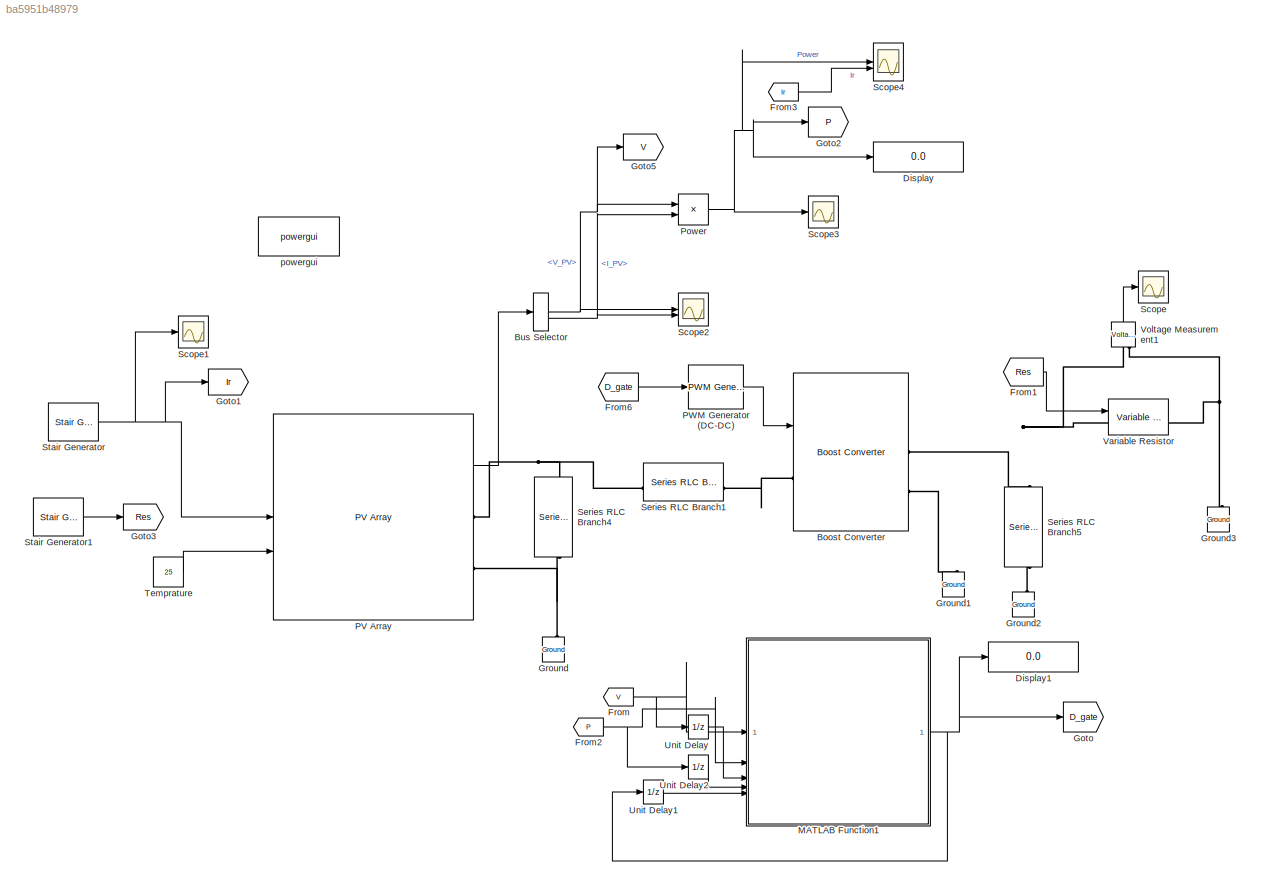
MODEL slx_ba5951b48979
KIND model
CONFIG AbsTol = auto
CONFIG EnableMultiTasking = off
CONFIG FixedStep = 5e-6
CONFIG MaxStep = auto
CONFIG MinStep = auto
CONFIG RelTol = 1e-3
CONFIG SampleTimeConstraint = Unconstrained
CONFIG SolverName = FixedStepAuto
CONFIG StartTime = 0.0
CONFIG StopTime = 10.0
BLOCK [Reference] Boost Converter  REF=spsBoostConverterLib/Boost Converter
  LibrarySourceBlock = sps_lib/Power Electronics/Boost Converter
  SourceBlock = spsBoostConverterLib/Boost Converter
  SourceType = Boost Converter
BLOCK [BusSelector] Bus Selector
  OutputSignals = V_PV,I_PV
BLOCK [Display] Display
  Decimation = 1
BLOCK [Display] Display1
  Decimation = 1
BLOCK [From] From
  GotoTag = V
BLOCK [From] From1
  GotoTag = Res
BLOCK [From] From2
  GotoTag = P
  TagVisibility = global
BLOCK [From] From3
  GotoTag = Ir
BLOCK [From] From6
  GotoTag = D_gate
BLOCK [Goto] Goto
  GotoTag = D_gate
BLOCK [Goto] Goto1
  GotoTag = Ir
BLOCK [Goto] Goto2
  GotoTag = P
  TagVisibility = global
BLOCK [Goto] Goto3
  GotoTag = Res
BLOCK [Goto] Goto5
  GotoTag = V
BLOCK [Reference] Ground  REF=spsGroundLib/Ground
  LibrarySourceBlock = sps_lib/Utilities/Ground
  NameLocation = right
  SourceBlock = spsGroundLib/Ground
  SourceType = Ground
BLOCK [Reference] Ground1  REF=spsGroundLib/Ground
  LibrarySourceBlock = sps_lib/Utilities/Ground
  NameLocation = right
  SourceBlock = spsGroundLib/Ground
  SourceType = Ground
BLOCK [Reference] Ground2  REF=spsGroundLib/Ground
  LibrarySourceBlock = sps_lib/Utilities/Ground
  NameLocation = right
  SourceBlock = spsGroundLib/Ground
  SourceType = Ground
BLOCK [Reference] Ground3  REF=spsGroundLib/Ground
  LibrarySourceBlock = sps_lib/Utilities/Ground
  NameLocation = right
  SourceBlock = spsGroundLib/Ground
  SourceType = Ground
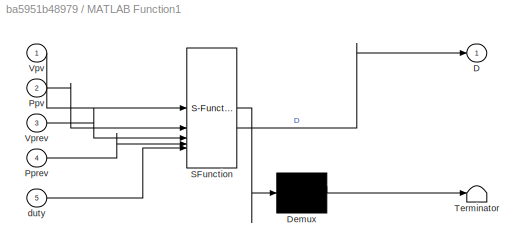
BLOCK [SubSystem] MATLAB Function1
  ErrorFcn = Stateflow.Translate.translate
  PermitHierarchicalResolution = ExplicitOnly
  SFBlockType = MATLAB Function
  TreatAsAtomicUnit = on
BLOCK [Demux] MATLAB Function1/ Demux 
  Outputs = 1
BLOCK [S-Function] MATLAB Function1/ SFunction 
  EnableBusSupport = on
  FunctionName = sf_sfun
  PortCounts = [5 2]
  SFcnIsStateOwnerBlock = off
  SFunctionDeploymentMode = off
  Tag = Stateflow S-Function 1
BLOCK [Terminator] MATLAB Function1/ Terminator 
BLOCK [Outport] MATLAB Function1/D
BLOCK [Inport] MATLAB Function1/Pprev
  Port = 4
BLOCK [Inport] MATLAB Function1/Ppv
  Port = 2
BLOCK [Inport] MATLAB Function1/Vprev
  Port = 3
BLOCK [Inport] MATLAB Function1/Vpv
BLOCK [Inport] MATLAB Function1/duty
  Port = 5
BLOCK [Reference] PV Array  REF=spsPVArrayLib/PV Array
  LibrarySourceBlock = sps_lib/Sources/PV Array
  SourceBlock = spsPVArrayLib/PV Array
  SourceType = PV array
BLOCK [Reference] PWM Generator (DC-DC)  REF=spsPWMGeneratorDCDCLib/PWM Generator
(DC-DC)
  LibrarySourceBlock = sps_lib/Power Electronics/Power Electronics Control/PWM Generator\n(DC-DC)
  SourceBlock = spsPWMGeneratorDCDCLib/PWM Generator\n(DC-DC)
  SourceType = PWM Generator (DC-DC)
BLOCK [Product] Power
BLOCK [Scope] Scope
  Floating = off
  NumInputPorts = 1
  ScopeSpecificationString = Simulink.scopes.TimeScopeBlockCfg('CurrentConfiguration', extmgr.ConfigurationSet(extmgr.Configuration('Core','General UI',true),extmgr.Configuration('Core','Source UI',true),extmgr.Configuration('Sources','WiredSimulink',true),extmgr.Configuration('Visuals','Time Domain',true),extmgr.Configuration('Tools','Plot Navigation',true),extmgr.Configuration('Tools','Measurements',true)),'Version','2024b'...<+1ch>
BLOCK [Scope] Scope1
  Floating = off
  NumInputPorts = 1
  ScopeSpecificationString = Simulink.scopes.TimeScopeBlockCfg('CurrentConfiguration', extmgr.ConfigurationSet(extmgr.Configuration('Core','General UI',true),extmgr.Configuration('Core','Source UI',true),extmgr.Configuration('Sources','WiredSimulink',true,'DataLoggingVariableName','ScopeData3'),extmgr.Configuration('Visuals','Time Domain',true),extmgr.Configuration('Tools','Plot Navigation',true),extmgr.Configuration('Tools',...<+40ch>
BLOCK [Scope] Scope2
  Floating = off
  NumInputPorts = 2
  ScopeSpecificationString = Simulink.scopes.TimeScopeBlockCfg('CurrentConfiguration', extmgr.ConfigurationSet(extmgr.Configuration('Core','General UI',true),extmgr.Configuration('Core','Source UI',true),extmgr.Configuration('Sources','WiredSimulink',true,'DataLoggingVariableName','ScopeData1'),extmgr.Configuration('Visuals','Time Domain',true,'SerializedDisplays',{struct('MinYLimReal','-10','MaxYLimReal','10','YLabelReal',''...<+849ch>
BLOCK [Scope] Scope3
  Floating = off
  NumInputPorts = 1
  ScopeSpecificationString = Simulink.scopes.TimeScopeBlockCfg('CurrentConfiguration', extmgr.ConfigurationSet(extmgr.Configuration('Core','General UI',true),extmgr.Configuration('Core','Source UI',true),extmgr.Configuration('Sources','WiredSimulink',true,'DataLoggingVariableName','ScopeData2'),extmgr.Configuration('Visuals','Time Domain',true,'SerializedDisplays',{struct('MinYLimReal','-825.85111','MaxYLimReal','4843.48523',...<+1525ch>
BLOCK [Scope] Scope4
  Floating = off
  NumInputPorts = 2
  ScopeSpecificationString = Simulink.scopes.TimeScopeBlockCfg('CurrentConfiguration', extmgr.ConfigurationSet(extmgr.Configuration('Core','General UI',true),extmgr.Configuration('Core','Source UI',true),extmgr.Configuration('Sources','WiredSimulink',true,'DataLoggingVariableName','ScopeData1'),extmgr.Configuration('Visuals','Time Domain',true,'SerializedDisplays',{struct('MinYLimReal','-825.85111','MaxYLimReal','4843.48523',...<+2515ch>
BLOCK [Reference] Series RLC Branch1  REF=spsSeriesRLCBranchLib/Series RLC Branch
  LibrarySourceBlock = sps_lib/Passives/Series RLC Branch
  NameLocation = top
  SourceBlock = spsSeriesRLCBranchLib/Series RLC Branch
  SourceType = Series RLC Branch
BLOCK [Reference] Series RLC Branch4  REF=spsSeriesRLCBranchLib/Series RLC Branch
  LibrarySourceBlock = sps_lib/Passives/Series RLC Branch
  NameLocation = right
  SourceBlock = spsSeriesRLCBranchLib/Series RLC Branch
  SourceType = Series RLC Branch
BLOCK [Reference] Series RLC Branch5  REF=spsSeriesRLCBranchLib/Series RLC Branch
  LibrarySourceBlock = sps_lib/Passives/Series RLC Branch
  NameLocation = right
  SourceBlock = spsSeriesRLCBranchLib/Series RLC Branch
  SourceType = Series RLC Branch
BLOCK [Reference] Stair Generator  REF=spsStairGeneratorLib/Stair
Generator
  LibrarySourceBlock = sps_lib/Sources/Signal Generator Sources/Stair\nGenerator
  SourceBlock = spsStairGeneratorLib/Stair\nGenerator
  SourceType = Stair Generator
BLOCK [Reference] Stair Generator1  REF=spsStairGeneratorLib/Stair
Generator
  LibrarySourceBlock = sps_lib/Sources/Signal Generator Sources/Stair\nGenerator
  SourceBlock = spsStairGeneratorLib/Stair\nGenerator
  SourceType = Stair Generator
BLOCK [Constant] Temprature
  Value = 25
BLOCK [UnitDelay] Unit Delay
  HasFrameUpgradeWarning = on
  SampleTime = -1
BLOCK [UnitDelay] Unit Delay1
  HasFrameUpgradeWarning = on
  SampleTime = -1
BLOCK [UnitDelay] Unit Delay2
  HasFrameUpgradeWarning = on
  SampleTime = -1
BLOCK [Reference] Variable Resistor  REF=spsVariableResistorLib/Variable Resistor
  LibrarySourceBlock = sps_lib/Passives/Variable Resistor
  SourceBlock = spsVariableResistorLib/Variable Resistor
  SourceType = Variable Resistor
BLOCK [Reference] Voltage Measurement1  REF=spsVoltageMeasurementLib/Voltage Measurement
  LibrarySourceBlock = sps_lib/Sensors and Measurements/Voltage Measurement
  NameLocation = right
  SourceBlock = spsVoltageMeasurementLib/Voltage Measurement
  SourceType = Voltage Measurement
  UserDataPersistent = on
BLOCK [Reference] powergui  REF=sps_lib/powergui
  LibrarySourceBlock = sps_lib/powergui
  Priority = 1
  SourceBlock = sps_lib/powergui
  SourceType = PSB option menu block
NET Bus Selector:1 -> Goto5:1, Power:1, Scope2:1
NET Bus Selector:2 -> Power:2, Scope2:2
LINE From1:1 -> Variable Resistor:1
NET From2:1 -> MATLAB Function1:2, Unit Delay2:1
LINE From3:1 -> Scope4:2
LINE From6:1 -> PWM Generator (DC-DC):1
NET From:1 -> MATLAB Function1:1, Unit Delay:1
NET MATLAB Function1:1 -> Display1:1, Goto:1, Unit Delay1:1
LINE PV Array:1 -> Bus Selector:1
LINE PWM Generator (DC-DC):1 -> Boost Converter:1
NET Power:1 -> Display:1, Goto2:1, Scope3:1, Scope4:1
LINE Stair Generator1:1 -> Goto3:1
NET Stair Generator:1 -> Goto1:1, PV Array:1, Scope1:1
LINE Temprature:1 -> PV Array:2
LINE Unit Delay1:1 -> MATLAB Function1:5
LINE Unit Delay2:1 -> MATLAB Function1:4
LINE Unit Delay:1 -> MATLAB Function1:3
LINE Voltage Measurement1:1 -> Scope:1
PLINE Boost Converter:LConn1 -- Series RLC Branch1:LConn1
PNET net1: Boost Converter:RConn1 -- Series RLC Branch5:RConn1 -- Variable Resistor:LConn1 -- Voltage Measurement1:LConn1
PLINE Boost Converter:RConn2 -- Ground1:LConn1
PLINE Ground2:LConn1 -- Series RLC Branch5:LConn1
PNET net2: Ground3:LConn1 -- Variable Resistor:RConn1 -- Voltage Measurement1:LConn2
PNET net3: Ground:LConn1 -- PV Array:RConn2 -- Series RLC Branch4:LConn1
PNET net4: PV Array:RConn1 -- Series RLC Branch1:RConn1 -- Series RLC Branch4:RConn1
note: NET lines group one-source signal fan-out (src -> all destinations, sorted); 1:1 wires keep LINE; PNET lines group multi-terminal physical nets as a canonical sorted terminal list (undirected conserving connections); 2-terminal nets keep the pairwise PLINE form
CHART MATLAB Function1 states=1 transitions=1
  STATE_LABEL 'eML_blk_kernel()'
  STATE_LABEL 'SCRIPT:\nfunction D = fduty (Vpv, Ppv, Vprev, Pprev, duty)\ndD=0.001;\nDmin=0.1;\nDmax=0.95;\nif isempty(duty)\n     duty=0.5;\nend\ndP=Ppv-Pprev;\ndV=Vpv-Vprev;\n\nif dP>0\n  if dV>0\n     D=duty-dD;\n  else\n     D=duty+dD;\n  end\nelse\n    if dV>0\n      D=duty+dD;\n    else\n       D=duty-dD;\n    end\nend   \nD= max(min(D,Dmax),Dmin);'
CHART  states=0 transitions=0
